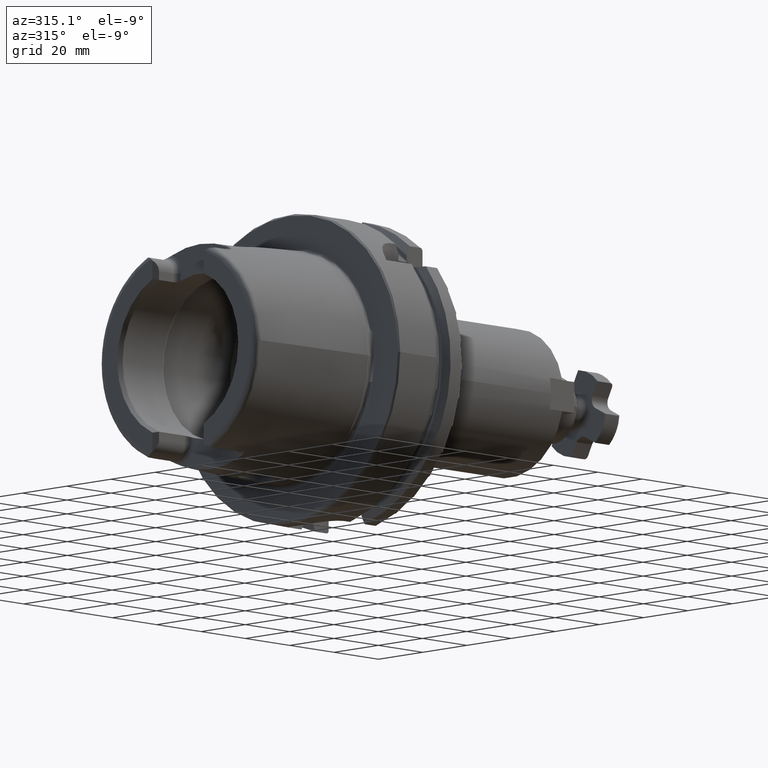
[diagram: clean part render]
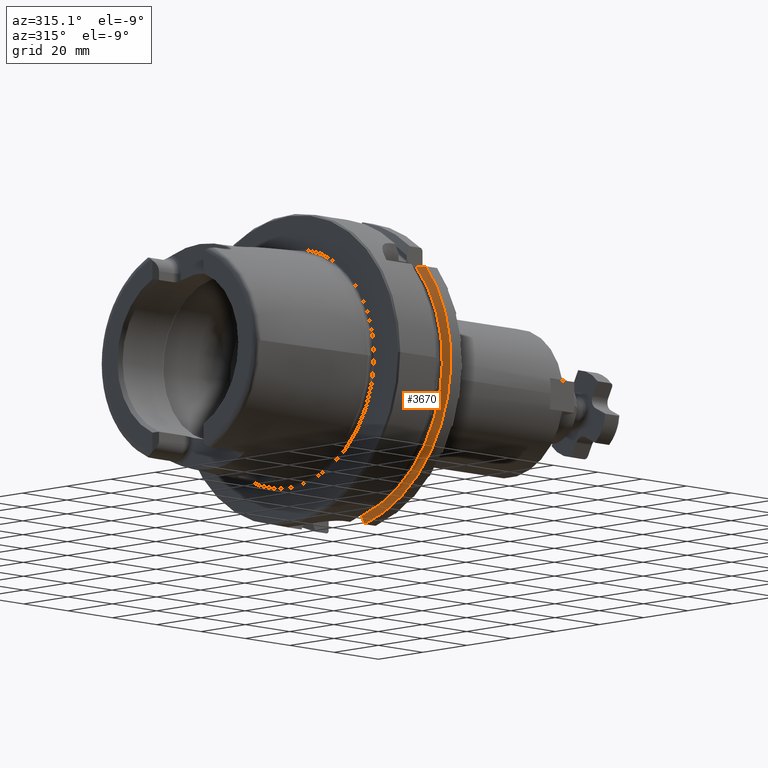
[diagram: same view with one face highlighted and labeled with its STEP entity id]
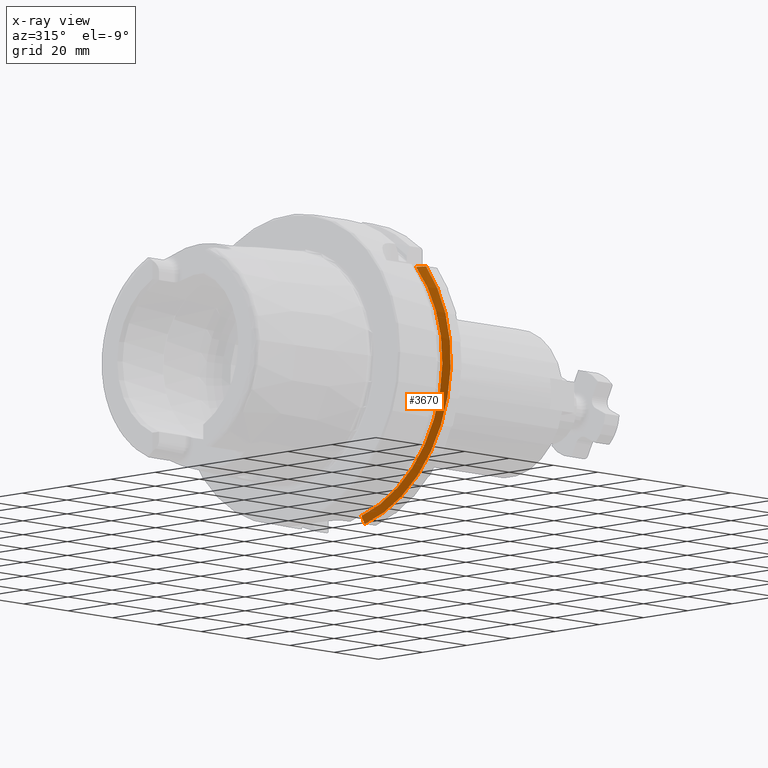
[diagram: x-ray of the same camera — body ghosted, the highlighted face saturated]
A machine part, auxiliary view. The second image highlights one B-rep face of the part: STEP entity #3670.
The next image is the same camera in x-ray: the body ghosted, the highlighted face saturated — about 0% of this face is hidden behind the body in this view.
In plain terms, the highlighted conical surface has half-angle 60 deg.
Its self-contained STEP definition (entity closure, byte-faithful):
#555=(
BOUNDED_CURVE()
B_SPLINE_CURVE(2,(#6552,#6553,#6554),.UNSPECIFIED.,.F.,.F.)
B_SPLINE_CURVE_WITH_KNOTS((3,3),(0.,0.343884390880419),.UNSPECIFIED.)
CURVE()
GEOMETRIC_REPRESENTATION_ITEM()
RATIONAL_B_SPLINE_CURVE((1.,1.00052016257005,1.))
REPRESENTATION_ITEM('')
);
#560=(
BOUNDED_CURVE()
B_SPLINE_CURVE(2,(#6767,#6768,#6769),.UNSPECIFIED.,.F.,.F.)
B_SPLINE_CURVE_WITH_KNOTS((3,3),(0.,0.28292349080556),.UNSPECIFIED.)
CURVE()
GEOMETRIC_REPRESENTATION_ITEM()
RATIONAL_B_SPLINE_CURVE((1.,1.0003193410929,1.))
REPRESENTATION_ITEM('')
);
#950=FACE_OUTER_BOUND('',#1148,.T.);
#1148=EDGE_LOOP('',(#3258,#3259,#3260,#3261));
#1672=CIRCLE('',#4088,50.);
#1724=CIRCLE('',#4193,47.5975952641917);
#1953=VERTEX_POINT('',#6549);
#1954=VERTEX_POINT('',#6551);
#1988=VERTEX_POINT('',#6764);
#1989=VERTEX_POINT('',#6766);
#2307=EDGE_CURVE('',#1954,#1953,#555,.T.);
#2357=EDGE_CURVE('',#1989,#1988,#560,.T.);
#2373=EDGE_CURVE('',#1954,#1988,#1672,.T.);
#2458=EDGE_CURVE('',#1953,#1989,#1724,.T.);
#3258=ORIENTED_EDGE('',*,*,#2307,.T.);
#3259=ORIENTED_EDGE('',*,*,#2458,.T.);
#3260=ORIENTED_EDGE('',*,*,#2357,.T.);
#3261=ORIENTED_EDGE('',*,*,#2373,.F.);
#3538=CONICAL_SURFACE('',#4194,48.7987976320958,1.0471975511966);
#3670=ADVANCED_FACE('',(#950),#3538,.T.);
#4088=AXIS2_PLACEMENT_3D('',#6829,#4820,#4821);
#4193=AXIS2_PLACEMENT_3D('',#7073,#5054,#5055);
#4194=AXIS2_PLACEMENT_3D('',#7074,#5056,#5057);
#4820=DIRECTION('center_axis',(1.,0.,0.));
#4821=DIRECTION('ref_axis',(0.,0.,-1.));
#5054=DIRECTION('center_axis',(1.,0.,0.));
#5055=DIRECTION('ref_axis',(0.,0.,-1.));
#5056=DIRECTION('center_axis',(1.,0.,0.));
#5057=DIRECTION('ref_axis',(0.,-0.951449961441176,-0.307803461438603));
#6549=CARTESIAN_POINT('',(21.875,-35.6830642593065,31.5));
#6551=CARTESIAN_POINT('',(23.2620290209214,-38.8297566307078,31.5));
#6552=CARTESIAN_POINT('Ctrl Pts',(23.2620290209214,-38.8297566307078,31.5));
#6553=CARTESIAN_POINT('Ctrl Pts',(22.5392272442767,-37.2176818849707,31.5));
#6554=CARTESIAN_POINT('Ctrl Pts',(21.875,-35.6830642593065,31.5));
#6764=CARTESIAN_POINT('',(23.2620290209214,-11.,-48.7749935930288));
#6766=CARTESIAN_POINT('',(21.875,-11.,-46.3090819919138));
#6767=CARTESIAN_POINT('Ctrl Pts',(21.875,-11.,-46.3090819919138));
#6768=CARTESIAN_POINT('Ctrl Pts',(22.5505288964237,-11.,-47.5116880808802));
#6769=CARTESIAN_POINT('Ctrl Pts',(23.2620290209214,-11.,-48.7749935930288));
#6829=CARTESIAN_POINT('Origin',(23.2620290209214,0.,0.));
#7073=CARTESIAN_POINT('Origin',(21.875,0.,0.));
#7074=CARTESIAN_POINT('Origin',(22.5685145104607,0.,0.));